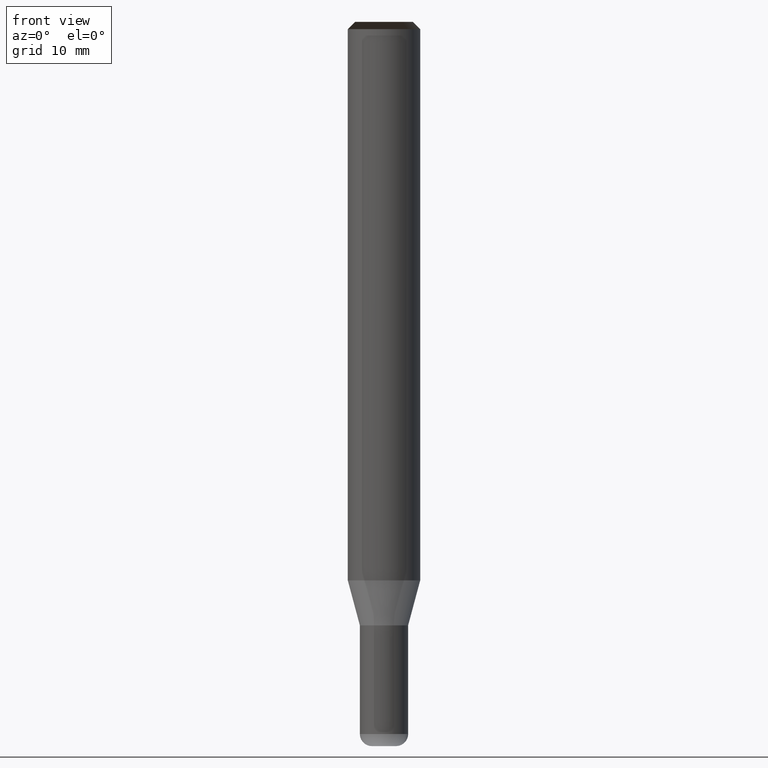
[diagram: clean part render]
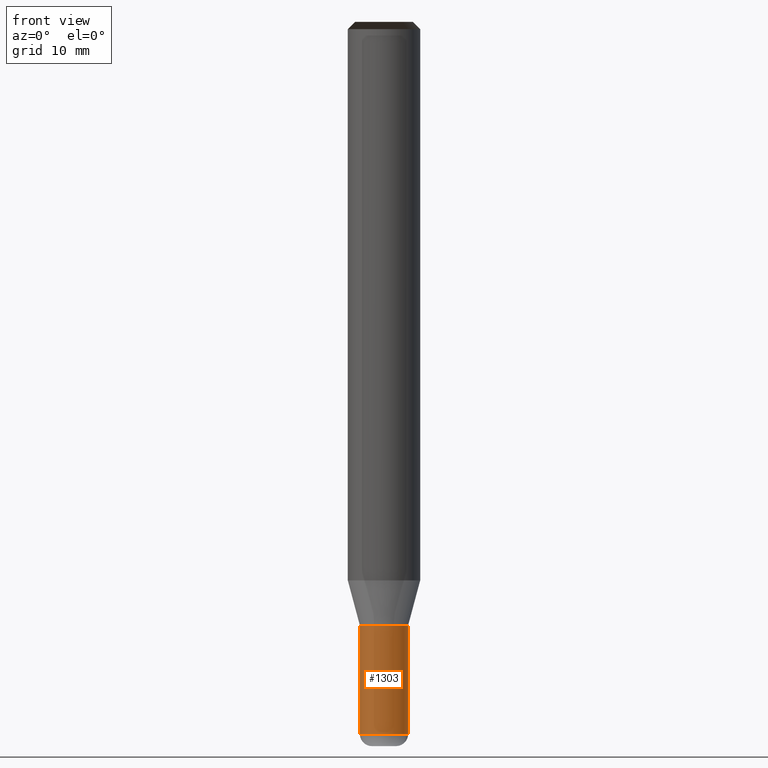
[diagram: same view with one face highlighted and labeled with its STEP entity id]
A machine part, front view. The second image highlights one B-rep face of the part: STEP entity #1303.
In plain terms, the highlighted face is a freeform B-spline surface patch.
Its self-contained STEP definition (entity closure, byte-faithful):
#1113=CARTESIAN_POINT('',(2.0,0.0,-12.732050807569));
#1117=CARTESIAN_POINT('',(-2.0,0.0,-12.732050807569));
#1118=CARTESIAN_POINT('',(2.0,0.0,-3.732050807569));
#1122=CARTESIAN_POINT('',(-2.0,0.0,-3.732050807569));
#1136=CARTESIAN_POINT('',(-2.0,-2.0,-12.732050807569));
#1137=CARTESIAN_POINT('',(0.0,-2.0,-12.732050807569));
#1138=CARTESIAN_POINT('',(2.0,-2.0,-12.732050807569));
#1139=CARTESIAN_POINT('',(-2.0,-2.0,-3.732050807569));
#1140=CARTESIAN_POINT('',(0.0,-2.0,-3.732050807569));
#1141=CARTESIAN_POINT('',(2.0,-2.0,-3.732050807569));
#1284=(
BOUNDED_SURFACE()
B_SPLINE_SURFACE(1,2,(
(#1117,#1136,#1137,#1138,#1113),
(#1122,#1139,#1140,#1141,#1118)
), .UNSPECIFIED.,.F.,.F.,.F.)
B_SPLINE_SURFACE_WITH_KNOTS((2,2),(3,2,3),(
0.0,1.0),(
0.0,0.5,1.0), .UNSPECIFIED.)
GEOMETRIC_REPRESENTATION_ITEM()
RATIONAL_B_SPLINE_SURFACE(((1.0,0.707106781187,1.0,0.707106781187,1.0),
(1.0,0.707106781187,1.0,0.707106781187,1.0)
))
REPRESENTATION_ITEM('')
SURFACE()
);
#1285=(
BOUNDED_CURVE()
B_SPLINE_CURVE(1,(#1122,#1117),.UNSPECIFIED.,.F.,.F.)
B_SPLINE_CURVE_WITH_KNOTS((2,2),
(0.0,1.0),.UNSPECIFIED.)
CURVE()
GEOMETRIC_REPRESENTATION_ITEM()
RATIONAL_B_SPLINE_CURVE((1.0,1.0))
REPRESENTATION_ITEM('')
);
#1286=(
BOUNDED_CURVE()
B_SPLINE_CURVE(2,(#1117,#1136,#1137,#1138,#1113),.UNSPECIFIED.,.F.,.F.)
B_SPLINE_CURVE_WITH_KNOTS((3,2,3),
(0.0,0.5,1.0),.UNSPECIFIED.)
CURVE()
GEOMETRIC_REPRESENTATION_ITEM()
RATIONAL_B_SPLINE_CURVE((1.0,0.707106781187,1.0,0.707106781187,1.0))
REPRESENTATION_ITEM('')
);
#1287=(
BOUNDED_CURVE()
B_SPLINE_CURVE(1,(#1113,#1118),.UNSPECIFIED.,.F.,.F.)
B_SPLINE_CURVE_WITH_KNOTS((2,2),
(0.0,1.0),.UNSPECIFIED.)
CURVE()
GEOMETRIC_REPRESENTATION_ITEM()
RATIONAL_B_SPLINE_CURVE((1.0,1.0))
REPRESENTATION_ITEM('')
);
#1288=(
BOUNDED_CURVE()
B_SPLINE_CURVE(2,(#1118,#1141,#1140,#1139,#1122),.UNSPECIFIED.,.F.,.F.)
B_SPLINE_CURVE_WITH_KNOTS((3,2,3),
(0.0,0.5,1.0),.UNSPECIFIED.)
CURVE()
GEOMETRIC_REPRESENTATION_ITEM()
RATIONAL_B_SPLINE_CURVE((1.0,0.707106781187,1.0,0.707106781187,1.0))
REPRESENTATION_ITEM('')
);
#1289=VERTEX_POINT('',#1113);
#1290=VERTEX_POINT('',#1117);
#1291=VERTEX_POINT('',#1118);
#1292=VERTEX_POINT('',#1122);
#1293=EDGE_CURVE('',#1292,#1290,#1285,.T.);
#1294=EDGE_CURVE('',#1290,#1289,#1286,.T.);
#1295=EDGE_CURVE('',#1289,#1291,#1287,.T.);
#1296=EDGE_CURVE('',#1291,#1292,#1288,.T.);
#1297=ORIENTED_EDGE('',*,*,#1293,.T.);
#1298=ORIENTED_EDGE('',*,*,#1294,.T.);
#1299=ORIENTED_EDGE('',*,*,#1295,.T.);
#1300=ORIENTED_EDGE('',*,*,#1296,.T.);
#1301=EDGE_LOOP('',(#1297,#1298,#1299,#1300));
#1302=FACE_OUTER_BOUND('',#1301,.T.);
#1303=ADVANCED_FACE('',(#1302),#1284,.T.);